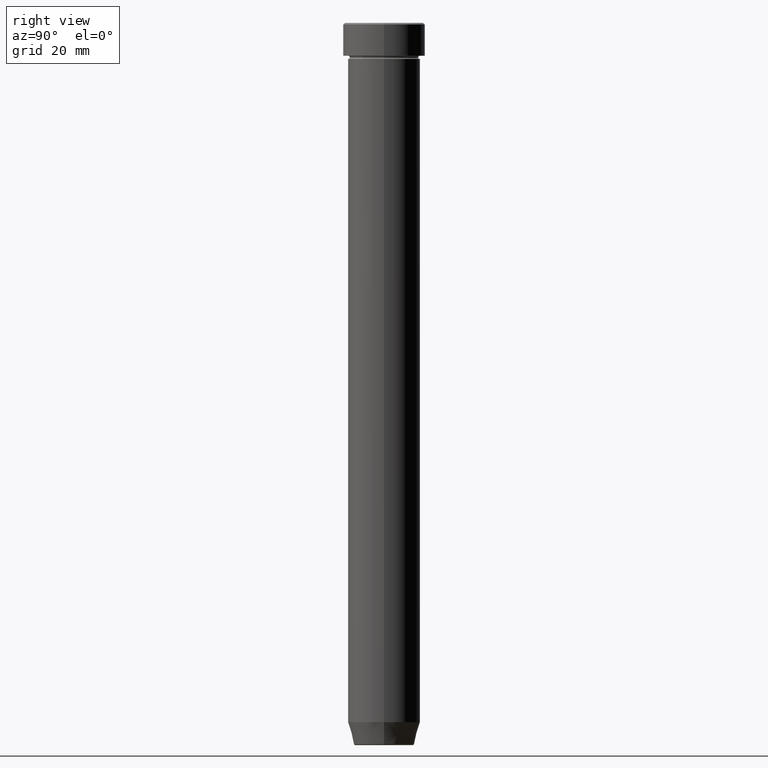
[diagram: clean part render]
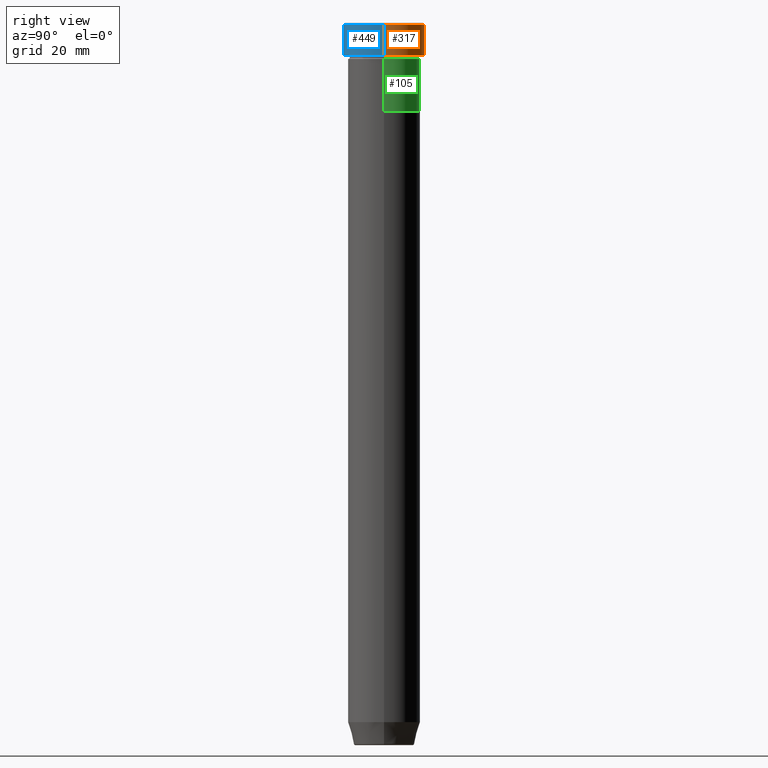
[diagram: same view with three faces highlighted in distinct colors, each labeled with its STEP entity id]
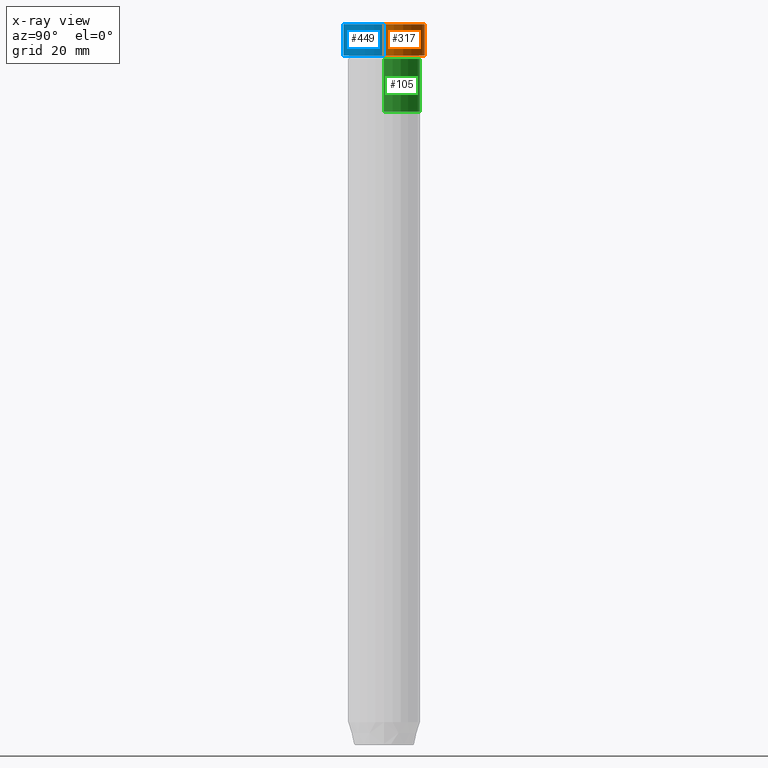
[diagram: x-ray of the same camera — body ghosted, the three highlighted faces saturated]
A machine part, right view with three faces highlighted in distinct colors.
The next image is the same camera in x-ray (body ghosted, the three faces saturated) — at least one of them is partly hidden behind the body in this view.
Their STEP definitions:

[orange] entity #317 — the highlighted cylindrical surface (partial cylindrical patch) has radius 12.5 mm, axis along (-0, -0, 1).
#13 = FACE_OUTER_BOUND ( 'NONE', #444, .T. ) ;
#15 = DIRECTION ( 'NONE',  ( 1.000000000000000000, 0.000000000000000000, 0.000000000000000000 ) ) ;
#29 = AXIS2_PLACEMENT_3D ( 'NONE', #382, #146, #110 ) ;
#32 = CARTESIAN_POINT ( 'NONE',  ( 12.50000000000000000, 0.000000000000000000, 0.000000000000000000 ) ) ;
#47 = VERTEX_POINT ( 'NONE', #351 ) ;
#74 = VERTEX_POINT ( 'NONE', #387 ) ;
#86 = VERTEX_POINT ( 'NONE', #516 ) ;
#107 = DIRECTION ( 'NONE',  ( -0.000000000000000000, -0.000000000000000000, 1.000000000000000000 ) ) ;
#110 = DIRECTION ( 'NONE',  ( 1.000000000000000000, 0.000000000000000000, 0.000000000000000000 ) ) ;
#146 = DIRECTION ( 'NONE',  ( -0.000000000000000000, -0.000000000000000000, 1.000000000000000000 ) ) ;
#179 = AXIS2_PLACEMENT_3D ( 'NONE', #346, #107, #15 ) ;
#197 = CARTESIAN_POINT ( 'NONE',  ( -12.50000000000000000, 1.530808498934191521E-15, -0.4999999999999988343 ) ) ;
#206 = DIRECTION ( 'NONE',  ( -0.000000000000000000, -0.000000000000000000, 1.000000000000000000 ) ) ;
#223 = EDGE_CURVE ( 'NONE', #513, #86, #501, .T. ) ;
#243 = LINE ( 'NONE', #32, #525 ) ;
#294 = AXIS2_PLACEMENT_3D ( 'NONE', #594, #365, #589 ) ;
#306 = EDGE_CURVE ( 'NONE', #74, #47, #451, .T. ) ;
#317 = ADVANCED_FACE ( 'NONE', ( #13 ), #523, .T. ) ;
#344 = CARTESIAN_POINT ( 'NONE',  ( -12.50000000000000000, 1.530808498934191521E-15, 0.000000000000000000 ) ) ;
#346 = CARTESIAN_POINT ( 'NONE',  ( 0.000000000000000000, 0.000000000000000000, -10.00000000000000000 ) ) ;
#351 = CARTESIAN_POINT ( 'NONE',  ( -12.50000000000000000, 1.530808498934191521E-15, -10.00000000000000000 ) ) ;
#365 = DIRECTION ( 'NONE',  ( 0.000000000000000000, 0.000000000000000000, -1.000000000000000000 ) ) ;
#382 = CARTESIAN_POINT ( 'NONE',  ( 0.000000000000000000, 0.000000000000000000, 0.000000000000000000 ) ) ;
#387 = CARTESIAN_POINT ( 'NONE',  ( 12.50000000000000000, 0.000000000000000000, -10.00000000000000000 ) ) ;
#406 = ORIENTED_EDGE ( 'NONE', *, *, #561, .F. ) ;
#442 = LINE ( 'NONE', #344, #494 ) ;
#444 = EDGE_LOOP ( 'NONE', ( #463, #567, #496, #406 ) ) ;
#451 = CIRCLE ( 'NONE', #179, 12.50000000000000000 ) ;
#463 = ORIENTED_EDGE ( 'NONE', *, *, #306, .T. ) ;
#494 = VECTOR ( 'NONE', #572, 1000.000000000000000 ) ;
#496 = ORIENTED_EDGE ( 'NONE', *, *, #223, .T. ) ;
#501 = CIRCLE ( 'NONE', #294, 12.50000000000000000 ) ;
#513 = VERTEX_POINT ( 'NONE', #197 ) ;
#516 = CARTESIAN_POINT ( 'NONE',  ( 12.50000000000000000, 0.000000000000000000, -0.4999999999999988343 ) ) ;
#523 = CYLINDRICAL_SURFACE ( 'NONE', #29, 12.50000000000000000 ) ;
#525 = VECTOR ( 'NONE', #206, 1000.000000000000000 ) ;
#538 = EDGE_CURVE ( 'NONE', #47, #513, #442, .T. ) ;
#561 = EDGE_CURVE ( 'NONE', #74, #86, #243, .T. ) ;
#567 = ORIENTED_EDGE ( 'NONE', *, *, #538, .T. ) ;
#572 = DIRECTION ( 'NONE',  ( -0.000000000000000000, -0.000000000000000000, 1.000000000000000000 ) ) ;
#589 = DIRECTION ( 'NONE',  ( 1.000000000000000000, 0.000000000000000000, 0.000000000000000000 ) ) ;
#594 = CARTESIAN_POINT ( 'NONE',  ( 0.000000000000000000, 0.000000000000000000, -0.4999999999999988343 ) ) ;

[blue] entity #449 — the highlighted cylindrical surface (partial cylindrical patch) has radius 12.5 mm, axis along (-0, -0, 1).
#25 = FACE_OUTER_BOUND ( 'NONE', #492, .T. ) ;
#30 = CIRCLE ( 'NONE', #362, 12.50000000000000000 ) ;
#32 = CARTESIAN_POINT ( 'NONE',  ( 12.50000000000000000, 0.000000000000000000, 0.000000000000000000 ) ) ;
#44 = AXIS2_PLACEMENT_3D ( 'NONE', #116, #111, #399 ) ;
#47 = VERTEX_POINT ( 'NONE', #351 ) ;
#66 = CARTESIAN_POINT ( 'NONE',  ( 0.000000000000000000, 0.000000000000000000, -10.00000000000000000 ) ) ;
#74 = VERTEX_POINT ( 'NONE', #387 ) ;
#86 = VERTEX_POINT ( 'NONE', #516 ) ;
#88 = ORIENTED_EDGE ( 'NONE', *, *, #561, .T. ) ;
#111 = DIRECTION ( 'NONE',  ( -0.000000000000000000, -0.000000000000000000, 1.000000000000000000 ) ) ;
#116 = CARTESIAN_POINT ( 'NONE',  ( 0.000000000000000000, 0.000000000000000000, 0.000000000000000000 ) ) ;
#169 = DIRECTION ( 'NONE',  ( -0.000000000000000000, -0.000000000000000000, 1.000000000000000000 ) ) ;
#197 = CARTESIAN_POINT ( 'NONE',  ( -12.50000000000000000, 1.530808498934191521E-15, -0.4999999999999988343 ) ) ;
#206 = DIRECTION ( 'NONE',  ( -0.000000000000000000, -0.000000000000000000, 1.000000000000000000 ) ) ;
#226 = CIRCLE ( 'NONE', #374, 12.50000000000000000 ) ;
#243 = LINE ( 'NONE', #32, #525 ) ;
#253 = EDGE_CURVE ( 'NONE', #47, #74, #226, .T. ) ;
#315 = ORIENTED_EDGE ( 'NONE', *, *, #538, .F. ) ;
#344 = CARTESIAN_POINT ( 'NONE',  ( -12.50000000000000000, 1.530808498934191521E-15, 0.000000000000000000 ) ) ;
#351 = CARTESIAN_POINT ( 'NONE',  ( -12.50000000000000000, 1.530808498934191521E-15, -10.00000000000000000 ) ) ;
#362 = AXIS2_PLACEMENT_3D ( 'NONE', #502, #548, #367 ) ;
#367 = DIRECTION ( 'NONE',  ( 1.000000000000000000, 0.000000000000000000, 0.000000000000000000 ) ) ;
#374 = AXIS2_PLACEMENT_3D ( 'NONE', #66, #169, #498 ) ;
#387 = CARTESIAN_POINT ( 'NONE',  ( 12.50000000000000000, 0.000000000000000000, -10.00000000000000000 ) ) ;
#399 = DIRECTION ( 'NONE',  ( 1.000000000000000000, 0.000000000000000000, 0.000000000000000000 ) ) ;
#441 = ORIENTED_EDGE ( 'NONE', *, *, #253, .T. ) ;
#442 = LINE ( 'NONE', #344, #494 ) ;
#449 = ADVANCED_FACE ( 'NONE', ( #25 ), #526, .T. ) ;
#492 = EDGE_LOOP ( 'NONE', ( #315, #441, #88, #531 ) ) ;
#494 = VECTOR ( 'NONE', #572, 1000.000000000000000 ) ;
#498 = DIRECTION ( 'NONE',  ( 1.000000000000000000, 0.000000000000000000, 0.000000000000000000 ) ) ;
#502 = CARTESIAN_POINT ( 'NONE',  ( 0.000000000000000000, 0.000000000000000000, -0.4999999999999988343 ) ) ;
#513 = VERTEX_POINT ( 'NONE', #197 ) ;
#516 = CARTESIAN_POINT ( 'NONE',  ( 12.50000000000000000, 0.000000000000000000, -0.4999999999999988343 ) ) ;
#525 = VECTOR ( 'NONE', #206, 1000.000000000000000 ) ;
#526 = CYLINDRICAL_SURFACE ( 'NONE', #44, 12.50000000000000000 ) ;
#531 = ORIENTED_EDGE ( 'NONE', *, *, #598, .T. ) ;
#538 = EDGE_CURVE ( 'NONE', #47, #513, #442, .T. ) ;
#548 = DIRECTION ( 'NONE',  ( 0.000000000000000000, 0.000000000000000000, -1.000000000000000000 ) ) ;
#561 = EDGE_CURVE ( 'NONE', #74, #86, #243, .T. ) ;
#572 = DIRECTION ( 'NONE',  ( -0.000000000000000000, -0.000000000000000000, 1.000000000000000000 ) ) ;
#598 = EDGE_CURVE ( 'NONE', #86, #513, #30, .T. ) ;

[green] entity #105 — the highlighted cylindrical surface (edge-blend (fillet) strip) has radius 11 mm, axis along (-0, -0, 1).
#8 = CARTESIAN_POINT ( 'NONE',  ( 0.000000000000000000, 0.000000000000000000, -11.00000000000000000 ) ) ;
#16 = VERTEX_POINT ( 'NONE', #528 ) ;
#57 = DIRECTION ( 'NONE',  ( 1.000000000000000000, 0.000000000000000000, 0.000000000000000000 ) ) ;
#83 = CIRCLE ( 'NONE', #425, 11.00000000000000000 ) ;
#105 = ADVANCED_FACE ( 'NONE', ( #559 ), #482, .T. ) ;
#108 = ORIENTED_EDGE ( 'NONE', *, *, #409, .T. ) ;
#113 = DIRECTION ( 'NONE',  ( -0.000000000000000000, -0.000000000000000000, 1.000000000000000000 ) ) ;
#122 = VECTOR ( 'NONE', #336, 1000.000000000000000 ) ;
#141 = LINE ( 'NONE', #299, #122 ) ;
#144 = DIRECTION ( 'NONE',  ( 1.000000000000000000, 0.000000000000000000, 0.000000000000000000 ) ) ;
#149 = CARTESIAN_POINT ( 'NONE',  ( 11.00000000000000000, 0.000000000000000000, -27.00000000000000000 ) ) ;
#151 = ORIENTED_EDGE ( 'NONE', *, *, #163, .F. ) ;
#163 = EDGE_CURVE ( 'NONE', #284, #416, #212, .T. ) ;
#182 = DIRECTION ( 'NONE',  ( 1.000000000000000000, 0.000000000000000000, 0.000000000000000000 ) ) ;
#191 = EDGE_CURVE ( 'NONE', #16, #416, #236, .T. ) ;
#212 = CIRCLE ( 'NONE', #411, 11.00000000000000000 ) ;
#236 = LINE ( 'NONE', #518, #303 ) ;
#284 = VERTEX_POINT ( 'NONE', #390 ) ;
#292 = EDGE_CURVE ( 'NONE', #587, #284, #141, .T. ) ;
#299 = CARTESIAN_POINT ( 'NONE',  ( 11.00000000000000000, 0.000000000000000000, 0.000000000000000000 ) ) ;
#303 = VECTOR ( 'NONE', #423, 1000.000000000000000 ) ;
#336 = DIRECTION ( 'NONE',  ( -0.000000000000000000, -0.000000000000000000, 1.000000000000000000 ) ) ;
#363 = CARTESIAN_POINT ( 'NONE',  ( -11.00000000000000000, 1.347111479062088405E-15, -11.00000000000000000 ) ) ;
#390 = CARTESIAN_POINT ( 'NONE',  ( 11.00000000000000000, 0.000000000000000000, -11.00000000000000000 ) ) ;
#400 = EDGE_LOOP ( 'NONE', ( #108, #486, #151, #495 ) ) ;
#409 = EDGE_CURVE ( 'NONE', #587, #16, #83, .T. ) ;
#411 = AXIS2_PLACEMENT_3D ( 'NONE', #8, #424, #182 ) ;
#416 = VERTEX_POINT ( 'NONE', #363 ) ;
#421 = AXIS2_PLACEMENT_3D ( 'NONE', #469, #113, #57 ) ;
#423 = DIRECTION ( 'NONE',  ( -0.000000000000000000, -0.000000000000000000, 1.000000000000000000 ) ) ;
#424 = DIRECTION ( 'NONE',  ( -0.000000000000000000, -0.000000000000000000, 1.000000000000000000 ) ) ;
#425 = AXIS2_PLACEMENT_3D ( 'NONE', #506, #547, #144 ) ;
#469 = CARTESIAN_POINT ( 'NONE',  ( 0.000000000000000000, 0.000000000000000000, 0.000000000000000000 ) ) ;
#482 = CYLINDRICAL_SURFACE ( 'NONE', #421, 11.00000000000000000 ) ;
#486 = ORIENTED_EDGE ( 'NONE', *, *, #191, .T. ) ;
#495 = ORIENTED_EDGE ( 'NONE', *, *, #292, .F. ) ;
#506 = CARTESIAN_POINT ( 'NONE',  ( 0.000000000000000000, 0.000000000000000000, -27.00000000000000000 ) ) ;
#518 = CARTESIAN_POINT ( 'NONE',  ( -11.00000000000000000, 1.347111479062088405E-15, 0.000000000000000000 ) ) ;
#528 = CARTESIAN_POINT ( 'NONE',  ( -11.00000000000000000, 1.347111479062088405E-15, -27.00000000000000000 ) ) ;
#547 = DIRECTION ( 'NONE',  ( -0.000000000000000000, -0.000000000000000000, 1.000000000000000000 ) ) ;
#559 = FACE_OUTER_BOUND ( 'NONE', #400, .T. ) ;
#587 = VERTEX_POINT ( 'NONE', #149 ) ;